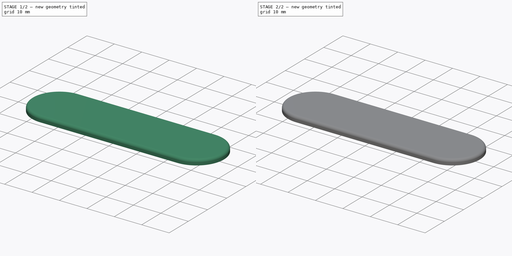
[diagram: build sequence overview — one tinted view per stage of 2, left to right]
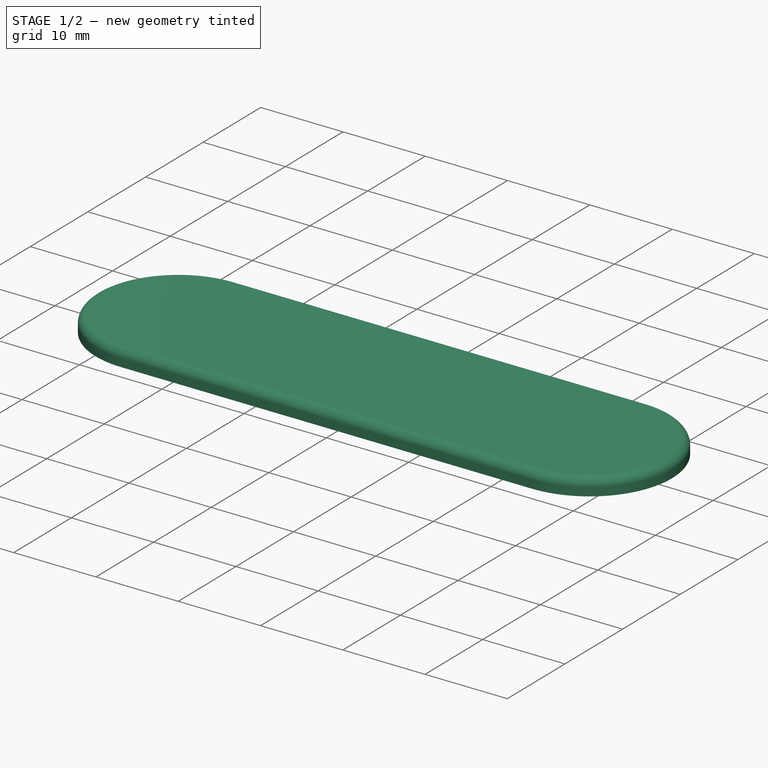
[diagram: stage 1 of 2 — iso view after this stage's code; geometry added in this stage tinted green]
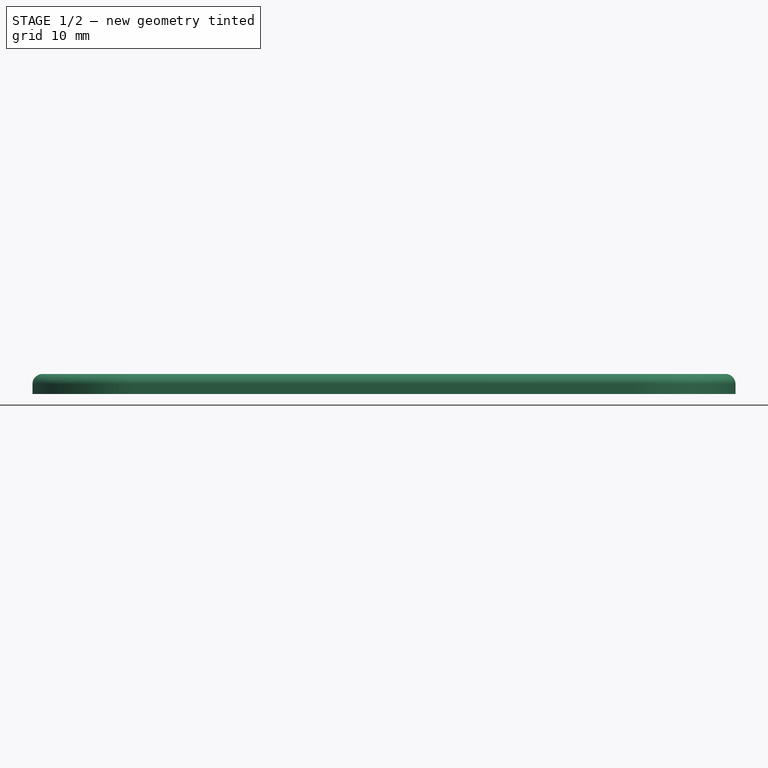
[diagram: stage 1 of 2 — front view after this stage's code; geometry added in this stage tinted green]
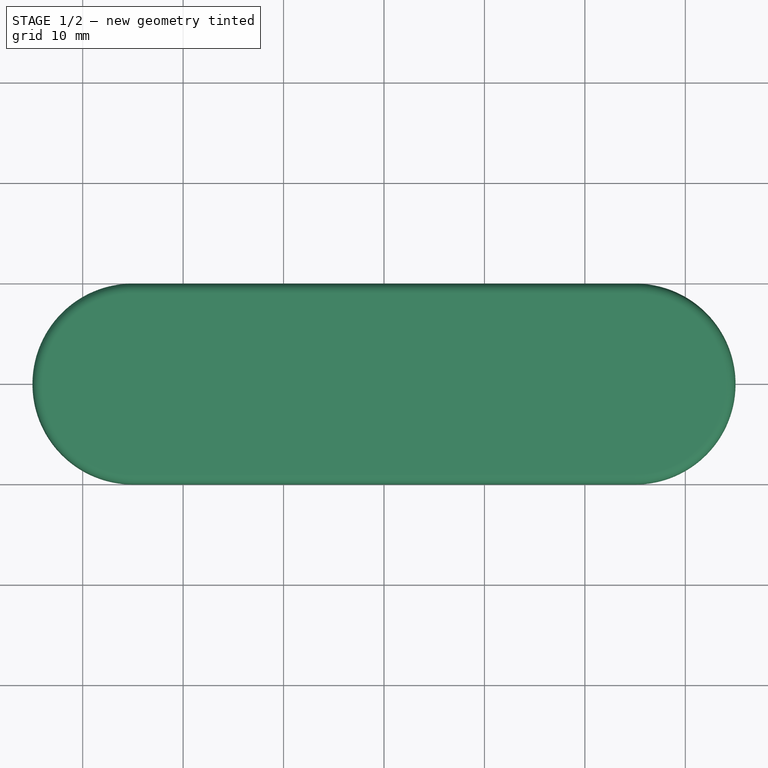
[diagram: stage 1 of 2 — top view after this stage's code; geometry added in this stage tinted green]
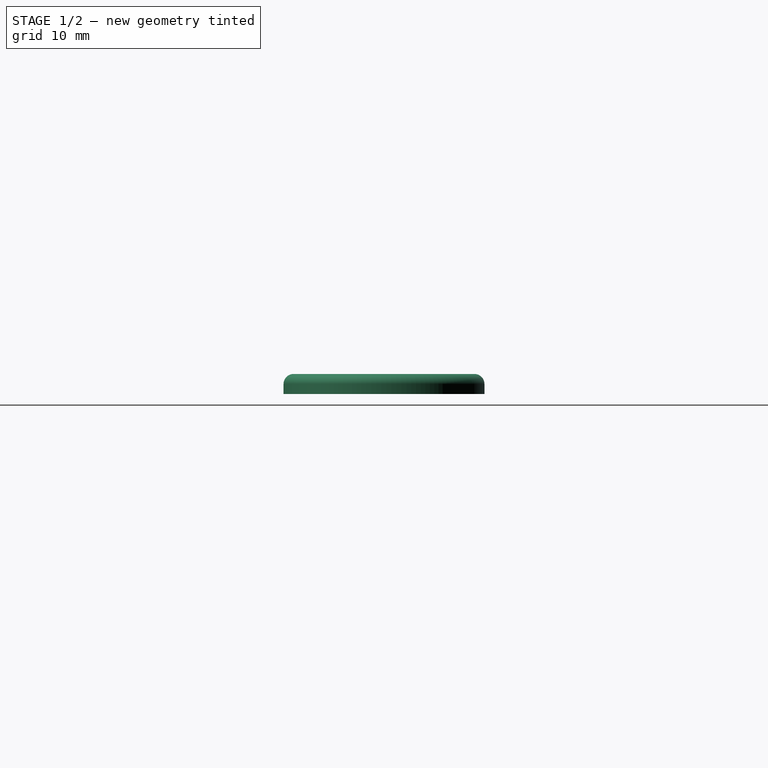
[diagram: stage 1 of 2 — right view after this stage's code; geometry added in this stage tinted green]
FCSTD DOCUMENT  (FreeCAD 0.19R)
Label: luer_lock_grip_dbl
License: All rights reserved
LicenseURL: http://en.wikipedia.org/wiki/All_rights_reserved
objects: Sketcher::SketchObject×2, PartDesign::Pad×1, PartDesign::Fillet×1, Spreadsheet::Sheet×1, PartDesign::Pocket×1, PartDesign::Body×1
note: 8 computed .brp shape members not serialized (recipe doc carries the construction recipe); baked Part::Feature solids carry a one-line shape summary decoded from their .brp

FEATURE [Sketcher::SketchObject] Sketch
  MapMode = 5
  Support = -> [XY_Plane]
  sketch-geometry (4):
    g0: LineSegment StartX=-25 StartY=10 StartZ=0 EndX=25 EndY=10 EndZ=0
    g1: LineSegment StartX=25 StartY=-10 StartZ=0 EndX=-25 EndY=-10 EndZ=0
    g2: ArcOfCircle CenterX=25 CenterY=-2e-16 CenterZ=0 NormalX=0 NormalY=0 NormalZ=1 AngleXU=0 Radius=10 StartAngle=4.71239 EndAngle=7.85398
    g3: ArcOfCircle CenterX=-25 CenterY=0 CenterZ=0 NormalX=0 NormalY=0 NormalZ=1 AngleXU=0 Radius=10 StartAngle=1.5708 EndAngle=4.71239
  constraints (13):
    c: Horizontal(g1)
    c: Coincident(g2,g0)
    c: Coincident(g2,g1)
    c: Coincident(g3,g0)
    c: Coincident(g3,g1)
    c: Vertical(g0,g1)
    c: Vertical(g0,g1)
    c: Distance(g0,g1) = 20
    c: Radius(g2) = 10
    c: Equal(g2,g3)
    c: Distance(g3,g2) = 50
    c: PointOnObject(g3,g-1)
    c: Symmetric(g0,g0,g-2)
FEATURE [PartDesign::Pad] Pad
  Length = 2
  Length2 = 100
  Profile = -> Sketch
  Type = 0
FEATURE [PartDesign::Fillet] Fillet
  Base = -> Pad [Edge10,Edge12,Edge4,Edge7]
  BaseFeature = -> Pad
  Radius = 1
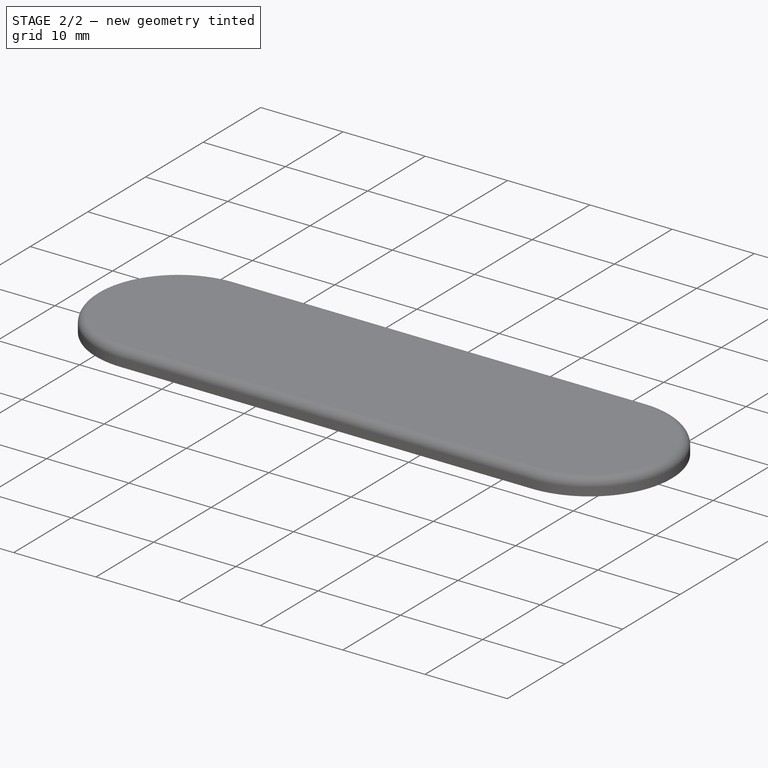
[diagram: stage 2 of 2 — iso view after this stage's code; geometry added in this stage tinted green]
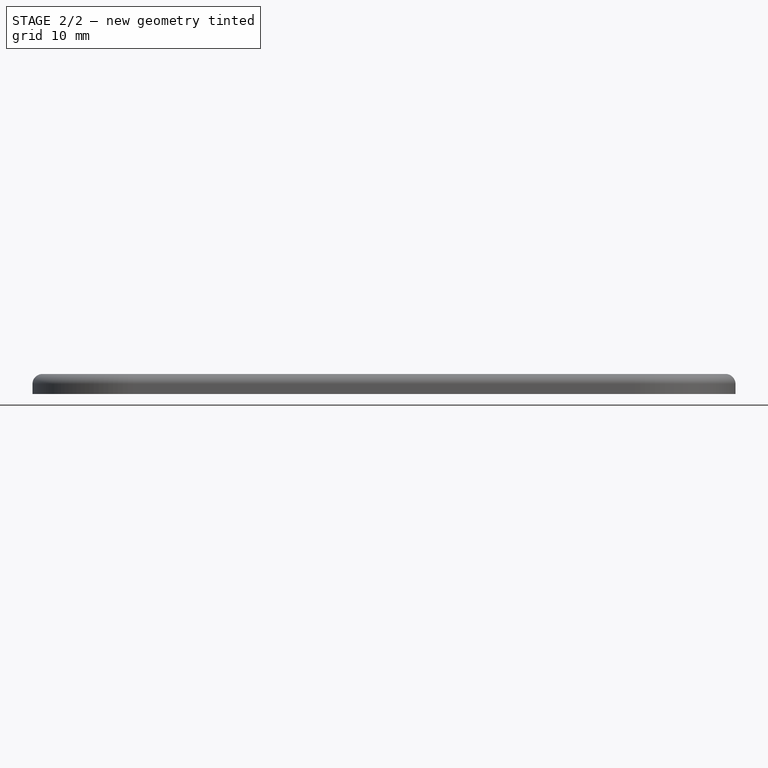
[diagram: stage 2 of 2 — front view after this stage's code; geometry added in this stage tinted green]
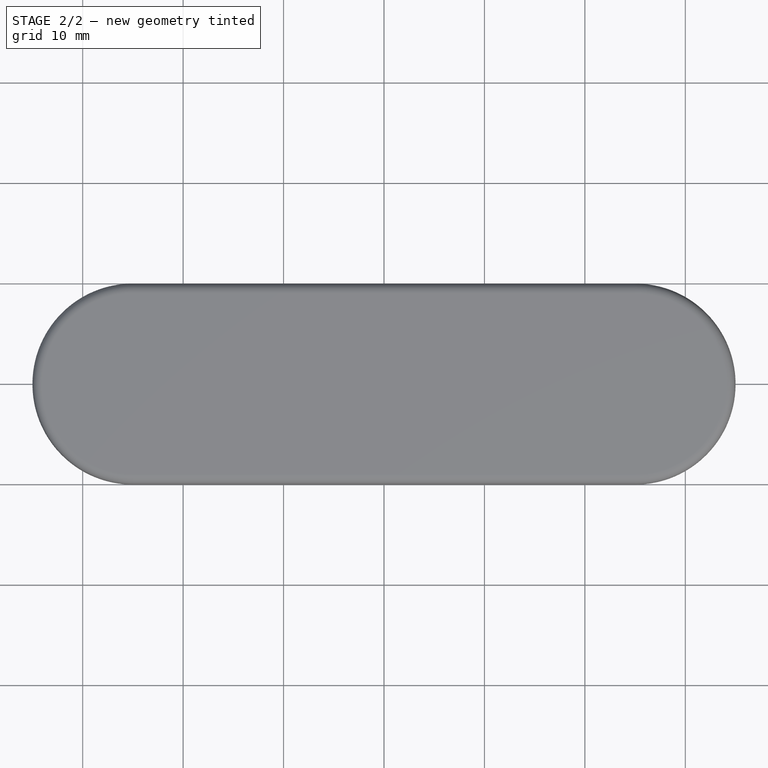
[diagram: stage 2 of 2 — top view after this stage's code; geometry added in this stage tinted green]
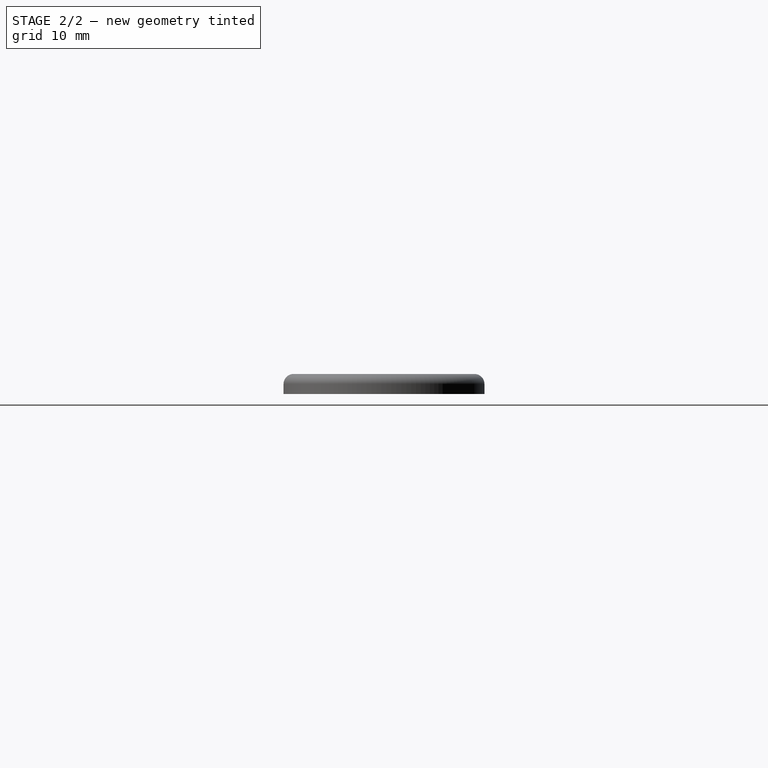
[diagram: stage 2 of 2 — right view after this stage's code; geometry added in this stage tinted green]
FEATURE [Spreadsheet::Sheet] Spreadsheet  label="var"
  cells = A1=layer_height; B1(layer_height)=0.17999999999999999; A2=height; B2(height)=2; A3=hole_depth; B3(hole_depth)==height - layer_height
FEATURE [Sketcher::SketchObject] Sketch001
  MapMode = 5
  Support = -> [XY_Plane]
  sketch-geometry (48):
    g0: Circle [constr] CenterX=-15 CenterY=0 CenterZ=0 NormalX=0 NormalY=0 NormalZ=1 AngleXU=0 Radius=5.8
    g1: ArcOfCircle CenterX=-13.414 CenterY=6.61245 CenterZ=0 NormalX=0 NormalY=0 NormalZ=1 AngleXU=0 Radius=1.45 StartAngle=3.74756 EndAngle=5.2064
    g2: ArcOfCircle CenterX=-9.83017 CenterY=4.41734 CenterZ=0 NormalX=0 NormalY=0 NormalZ=1 AngleXU=0 Radius=1.45 StartAngle=3.11924 EndAngle=4.57808
    g3: ArcOfCircle CenterX=-9.2013 CenterY=-3.55177 CenterZ=0 NormalX=0 NormalY=0 NormalZ=1 AngleXU=0 Radius=1.45 StartAngle=1.86261 EndAngle=3.32144
    g4: ArcOfCircle CenterX=-12.3964 CenterY=-6.28183 CenterZ=0 NormalX=0 NormalY=0 NormalZ=1 AngleXU=0 Radius=1.45 StartAngle=1.23429 EndAngle=2.69312
    g5: ArcOfCircle CenterX=-16.586 CenterY=-6.61245 CenterZ=0 NormalX=0 NormalY=0 NormalZ=1 AngleXU=0 Radius=1.45 StartAngle=0.60597 EndAngle=2.0648
    g6: ArcOfCircle CenterX=-20.1698 CenterY=-4.41734 CenterZ=0 NormalX=0 NormalY=0 NormalZ=1 AngleXU=0 Radius=1.45 StartAngle=6.26084 EndAngle=7.71967
    g7: ArcOfCircle CenterX=-21.7789 CenterY=-0.53495 CenterZ=0 NormalX=0 NormalY=0 NormalZ=1 AngleXU=0 Radius=1.45 StartAngle=5.63252 EndAngle=7.09135
    g8: ArcOfCircle CenterX=-20.7987 CenterY=3.55177 CenterZ=0 NormalX=0 NormalY=0 NormalZ=1 AngleXU=0 Radius=1.45 StartAngle=5.0042 EndAngle=6.46303
    g9: ArcOfCircle CenterX=-17.6036 CenterY=6.28183 CenterZ=0 NormalX=0 NormalY=0 NormalZ=1 AngleXU=0 Radius=1.45 StartAngle=4.37588 EndAngle=5.83472
    g10: ArcOfCircle CenterX=-8.22107 CenterY=0.53495 CenterZ=0 NormalX=0 NormalY=0 NormalZ=1 AngleXU=0 Radius=1.45 StartAngle=2.49093 EndAngle=3.94976
    g11: Circle [constr] CenterX=-15 CenterY=0 CenterZ=0 NormalX=0 NormalY=0 NormalZ=1 AngleXU=0 Radius=6.8
    g12: LineSegment StartX=-19.3721 StartY=3.81115 StartZ=0 EndX=-18.0823 EndY=4.91316 EndZ=0
    g13: LineSegment StartX=-16.297 StartY=5.65313 StartZ=0 EndX=-14.6058 EndY=5.78659 EndZ=0
    g14: LineSegment StartX=-12.7264 StartY=5.33581 StartZ=0 EndX=-11.2798 EndY=4.44974 EndZ=0
    g15: LineSegment StartX=-10.0243 StartY=2.98039 StartZ=0 EndX=-9.37481 EndY=1.41324 EndZ=0
    g16: LineSegment StartX=-9.22277 StartY=-0.513433 StartZ=0 EndX=-9.61844 EndY=-2.16307 EndZ=0
    g17: LineSegment StartX=-11.9177 StartY=-4.91316 StartZ=0 EndX=-10.6279 EndY=-3.81115 EndZ=0
    g18: LineSegment StartX=-15.3942 StartY=-5.78659 StartZ=0 EndX=-13.703 EndY=-5.65313 EndZ=0
    g19: LineSegment StartX=-18.7202 StartY=-4.44974 StartZ=0 EndX=-17.2736 EndY=-5.33581 EndZ=0
    g20: LineSegment StartX=-20.6252 StartY=-1.41324 StartZ=0 EndX=-19.9757 EndY=-2.98039 EndZ=0
    g21: LineSegment StartX=-20.3816 StartY=2.16307 StartZ=0 EndX=-20.7772 EndY=0.513433 EndZ=0
    g22: Circle [constr] CenterX=-15 CenterY=0 CenterZ=0 NormalX=0 NormalY=0 NormalZ=1 AngleXU=0 Radius=10
    g23: Circle CenterX=-25 CenterY=0 CenterZ=0 NormalX=0 NormalY=0 NormalZ=1 AngleXU=0 Radius=1.9
    g24: Circle CenterX=25 CenterY=-2e-16 CenterZ=0 NormalX=0 NormalY=0 NormalZ=1 AngleXU=0 Radius=1.9
    g25: Circle [constr] CenterX=15 CenterY=0 CenterZ=0 NormalX=0 NormalY=0 NormalZ=1 AngleXU=0 Radius=10
    g26: Circle [constr] CenterX=15 CenterY=0 CenterZ=0 NormalX=0 NormalY=0 NormalZ=1 AngleXU=0 Radius=6.8
    g27: Circle [constr] CenterX=15 CenterY=0 CenterZ=0 NormalX=0 NormalY=0 NormalZ=1 AngleXU=0 Radius=5.8
    g28: LineSegment StartX=20.6486 StartY=-1.31637 StartZ=0 EndX=20.0261 EndY=-2.89445 EndZ=0
    g29: LineSegment StartX=18.7961 StartY=-4.38515 StartZ=0 EndX=17.3649 EndY=-5.29596 EndZ=0
    g30: LineSegment StartX=15.4936 StartY=-5.77896 StartZ=0 EndX=13.8004 EndY=-5.67458 EndZ=0
    g31: LineSegment StartX=12.0025 StartY=-4.9654 StartZ=0 EndX=10.694 EndY=-3.88571 EndZ=0
    g32: LineSegment StartX=9.65641 StartY=-2.25523 StartZ=0 EndX=9.23245 EndY=-0.612634 EndZ=0
    g33: LineSegment StartX=9.35136 StartY=1.31637 StartZ=0 EndX=9.97385 EndY=2.89445 EndZ=0
    g34: LineSegment StartX=11.2039 StartY=4.38515 StartZ=0 EndX=12.6351 EndY=5.29596 EndZ=0
    g35: LineSegment StartX=14.5064 StartY=5.77896 StartZ=0 EndX=16.1996 EndY=5.67458 EndZ=0
    g36: LineSegment StartX=17.9975 StartY=4.9654 StartZ=0 EndX=19.306 EndY=3.88571 EndZ=0
    g37: LineSegment StartX=20.3436 StartY=2.25523 StartZ=0 EndX=20.7676 EndY=0.612634 EndZ=0
    g38: ArcOfCircle CenterX=20.245 CenterY=-4.32784 CenterZ=0 NormalX=0 NormalY=0 NormalZ=1 AngleXU=0 Radius=1.45 StartAngle=1.72229 EndAngle=3.18113
    g39: ArcOfCircle CenterX=16.6994 CenterY=-6.58422 CenterZ=0 NormalX=0 NormalY=0 NormalZ=1 AngleXU=0 Radius=1.45 StartAngle=1.09397 EndAngle=2.55281
    g40: ArcOfCircle CenterX=12.5048 CenterY=-6.32565 CenterZ=0 NormalX=0 NormalY=0 NormalZ=1 AngleXU=0 Radius=1.45 StartAngle=0.465654 EndAngle=1.92449
    g41: ArcOfCircle CenterX=9.26319 CenterY=-3.65089 CenterZ=0 NormalX=0 NormalY=0 NormalZ=1 AngleXU=0 Radius=1.45 StartAngle=6.12052 EndAngle=7.57936
    g42: ArcOfCircle CenterX=8.21288 CenterY=0.418381 CenterZ=0 NormalX=0 NormalY=0 NormalZ=1 AngleXU=0 Radius=1.45 StartAngle=5.4922 EndAngle=6.95104
    g43: ArcOfCircle CenterX=9.75503 CenterY=4.32784 CenterZ=0 NormalX=0 NormalY=0 NormalZ=1 AngleXU=0 Radius=1.45 StartAngle=4.86388 EndAngle=6.32272
    g44: ArcOfCircle CenterX=13.3006 CenterY=6.58422 CenterZ=0 NormalX=0 NormalY=0 NormalZ=1 AngleXU=0 Radius=1.45 StartAngle=4.23557 EndAngle=5.6944
    g45: ArcOfCircle CenterX=17.4952 CenterY=6.32565 CenterZ=0 NormalX=0 NormalY=0 NormalZ=1 AngleXU=0 Radius=1.45 StartAngle=3.60725 EndAngle=5.06608
    g46: ArcOfCircle CenterX=20.7368 CenterY=3.65089 CenterZ=0 NormalX=0 NormalY=0 NormalZ=1 AngleXU=0 Radius=1.45 StartAngle=2.97893 EndAngle=4.43776
    g47: ArcOfCircle CenterX=21.7871 CenterY=-0.418381 CenterZ=0 NormalX=0 NormalY=0 NormalZ=1 AngleXU=0 Radius=1.45 StartAngle=2.35061 EndAngle=3.80944
  constraints (147):
    c: PointOnObject(g1,g0)
    c: PointOnObject(g1,g0)
    c: PointOnObject(g2,g0)
    c: PointOnObject(g2,g0)
    c: PointOnObject(g3,g0)
    c: PointOnObject(g3,g0)
    c: PointOnObject(g4,g0)
    c: PointOnObject(g4,g0)
    c: PointOnObject(g5,g0)
    c: PointOnObject(g5,g0)
    c: PointOnObject(g6,g0)
    c: PointOnObject(g6,g0)
    c: PointOnObject(g7,g0)
    c: PointOnObject(g7,g0)
    c: PointOnObject(g8,g0)
    c: PointOnObject(g9,g0)
    c: PointOnObject(g9,g0)
    c: PointOnObject(g10,g0)
    c: PointOnObject(g10,g0)
    c: Equal(g1,g2)
    c: Equal(g1,g10)
    c: Equal(g1, g3-g9) x7
    c: PointOnObject(g1,g11)
    c: PointOnObject(g2,g11)
    c: PointOnObject(g10,g11)
    c: PointOnObject(g3,g11)
    c: PointOnObject(g4,g11)
    c: PointOnObject(g5,g11)
    c: PointOnObject(g6,g11)
    c: PointOnObject(g7,g11)
    c: PointOnObject(g8,g11)
    c: PointOnObject(g9,g11)
    c: Coincident(g12,g8)
    c: Coincident(g12,g9)
    c: Coincident(g13,g9)
    c: Coincident(g13,g1)
    c: Coincident(g14,g1)
    c: Coincident(g14,g2)
    c: PointOnObject(g8,g0)
    c: Coincident(g15,g2)
    c: Coincident(g16,g10)
    c: Coincident(g17,g4)
    c: Coincident(g17,g3)
    c: Coincident(g18,g5)
    c: Coincident(g18,g4)
    c: Coincident(g19,g6)
    c: Coincident(g19,g5)
    c: Coincident(g20,g7)
    c: Coincident(g20,g6)
    c: Coincident(g21,g8)
    c: Coincident(g15,g10)
    c: Coincident(g16,g3)
    c: Coincident(g21,g7)
    c: Radius(g0) = 5.8
    c: Radius(g11) = 6.8
    c: Equal(g16,g15)
    c: Equal(g15,g14)
    c: Equal(g14,g13)
    c: Equal(g13,g12)
    c: Equal(g12,g21)
    c: Equal(g21,g20)
    c: Equal(g20,g19)
    c: Equal(g19,g18)
    c: Equal(g18,g17)
    c: Radius(g2) = 1.45
    c: Radius(g22) = 10
    c: Radius(g24) = 1.9
    c: Equal(g24,g23)
    c: Coincident(g0,g11)
    c: Coincident(g0,g22)
    c: Coincident(g26,g25)
    c: Coincident(g27,g25)
    c: PointOnObject(g28,g27)
    c: PointOnObject(g28,g27)
    c: PointOnObject(g29,g27)
    c: PointOnObject(g29,g27)
    c: PointOnObject(g30,g27)
    c: PointOnObject(g30,g27)
    c: PointOnObject(g31,g27)
    c: PointOnObject(g31,g27)
    c: PointOnObject(g32,g27)
    c: PointOnObject(g32,g27)
    c: PointOnObject(g33,g27)
    c: PointOnObject(g33,g27)
    c: PointOnObject(g34,g27)
    c: PointOnObject(g34,g27)
    c: PointOnObject(g35,g27)
    c: PointOnObject(g35,g27)
    c: PointOnObject(g36,g27)
    c: PointOnObject(g36,g27)
    c: PointOnObject(g37,g27)
    c: PointOnObject(g37,g27)
    c: PointOnObject(g38,g26)
    c: Coincident(g38,g29)
    c: Coincident(g38,g28)
    c: PointOnObject(g39,g26)
    c: Coincident(g39,g29)
    c: Coincident(g39,g30)
    c: PointOnObject(g40,g26)
    c: Coincident(g40,g30)
    c: Coincident(g40,g31)
    c: PointOnObject(g41,g26)
    c: Coincident(g41,g31)
    c: Coincident(g41,g32)
    c: PointOnObject(g42,g26)
    c: Coincident(g42,g32)
    c: Coincident(g42,g33)
    c: PointOnObject(g43,g26)
    c: Coincident(g43,g33)
    c: Coincident(g43,g34)
    c: PointOnObject(g44,g26)
    c: Coincident(g44,g34)
    c: Coincident(g44,g35)
    c: Coincident(g45,g35)
    c: Coincident(g45,g36)
    c: PointOnObject(g46,g26)
    c: Coincident(g46,g36)
    c: Coincident(g46,g37)
    c: PointOnObject(g47,g26)
    c: Coincident(g47,g37)
    c: Coincident(g47,g28)
    c: Radius(g27) = 5.8
    c: Radius(g26) = 6.8
    c: Radius(g25) = 10
    c: PointOnObject(g45,g26)
    c: Equal(g28,g29)
    c: Equal(g29,g30)
    c: Equal(g30,g31)
    c: Equal(g31,g32)
    c: Equal(g32,g33)
    c: Equal(g33,g34)
    c: Equal(g34,g35)
    c: Equal(g35,g36)
    c: Equal(g36,g37)
    c: Equal(g38,g47)
    c: Equal(g47,g46)
    c: Equal(g46,g45)
    c: Equal(g45,g44)
    c: Equal(g44,g43)
    c: Equal(g43,g42)
    c: Equal(g42,g41)
    c: Equal(g41,g40)
    c: Equal(g40,g39)
    c: Radius(g47) = 1.45
    c: Symmetric(g25,g0,g-1)
    c: Horizontal(g25,g0)
    c: Distance(g25,g0) = 30
FEATURE [PartDesign::Pocket] Pocket
  BaseFeature = -> Fillet
  Length = 1.82
  Length2 = 100
  Profile = -> Sketch001
  Reversed = true
  Type = 0
  expr: Length = <<var>>.hole_depth
FEATURE [PartDesign::Body] Body
  Group = -> [Sketch,Pad,Fillet,Sketch001,Pocket]
  Origin = -> Origin
  Tip = -> Pocket
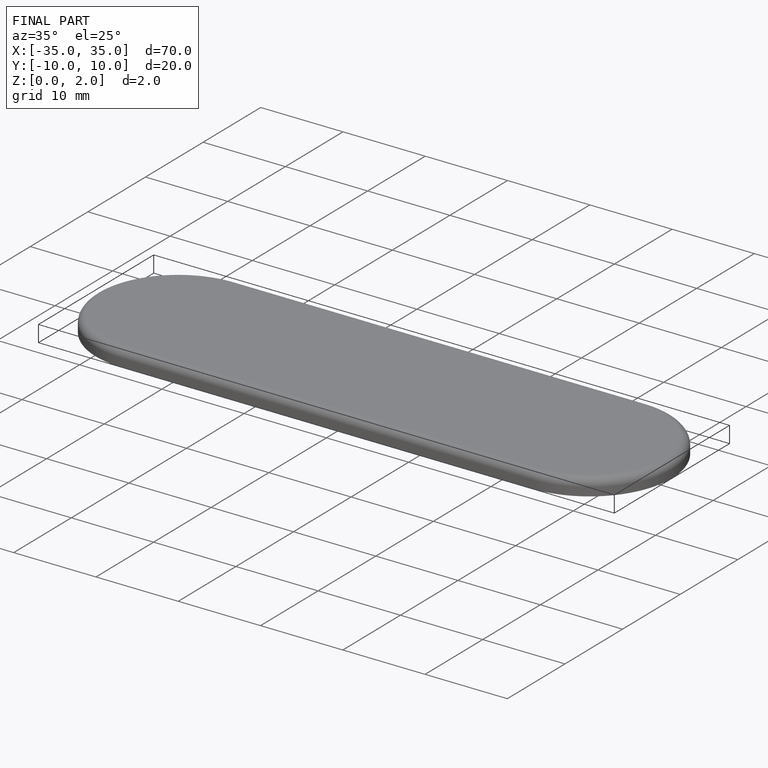
[diagram: finished part — iso view with bounding-box wireframe]
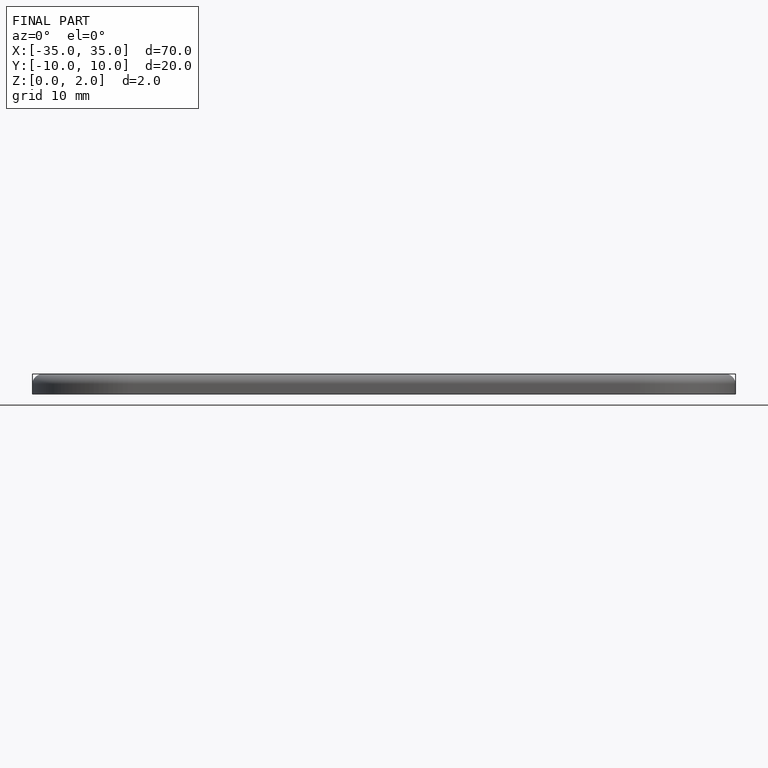
[diagram: finished part — front view with bounding-box wireframe]
